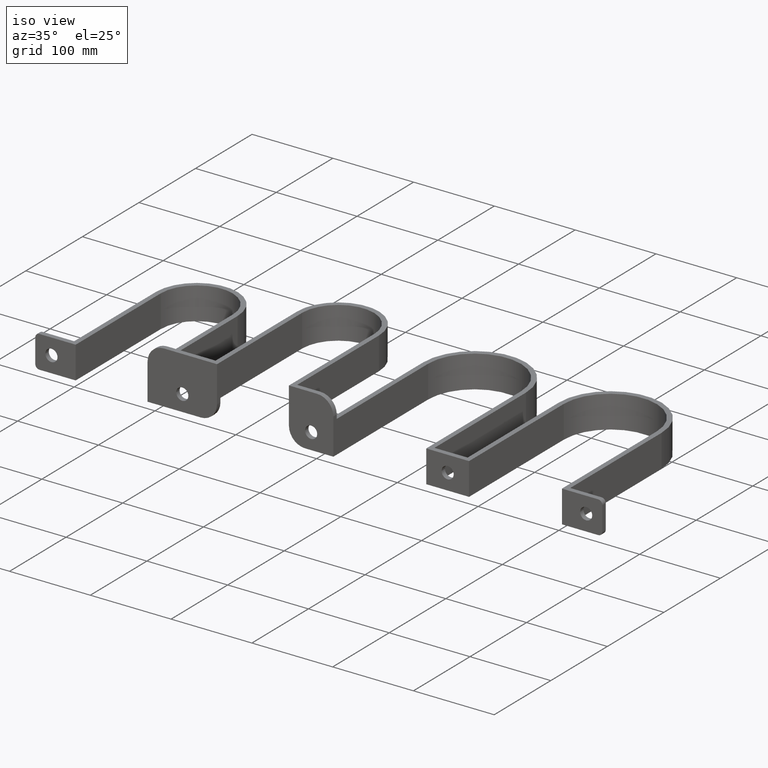
[diagram: clean part render]
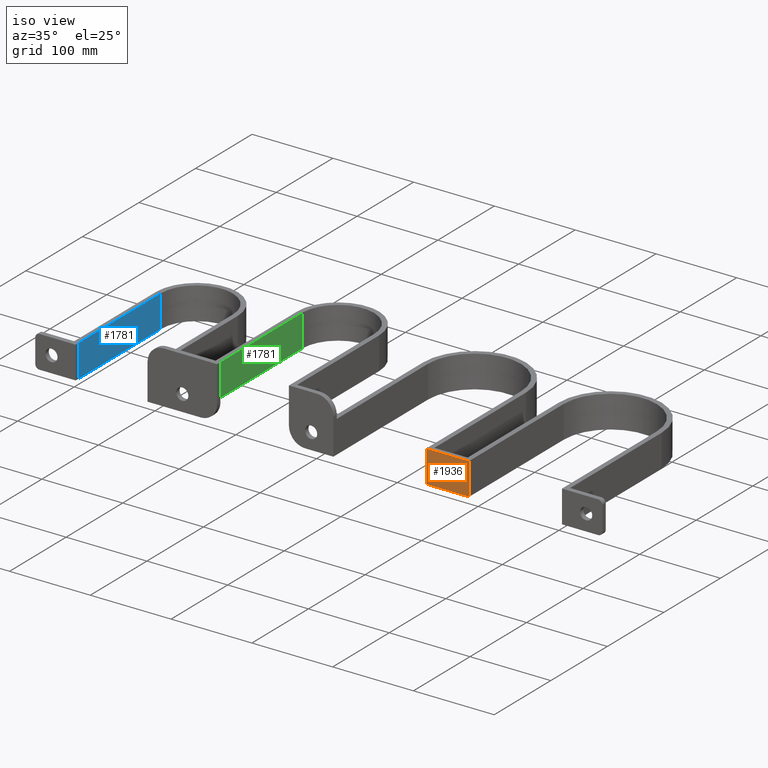
[diagram: same view with three faces highlighted in distinct colors, each labeled with its STEP entity id]
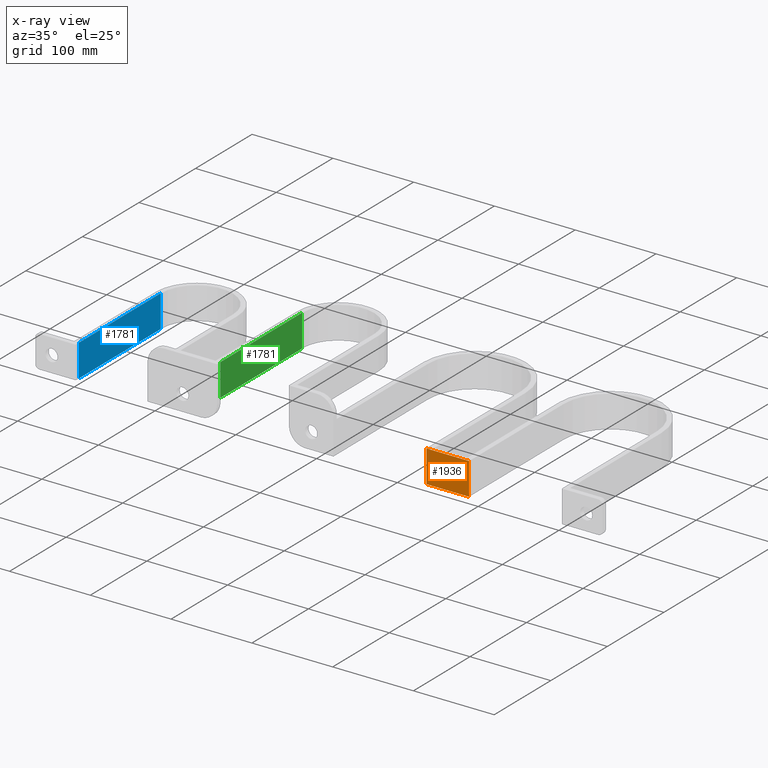
[diagram: x-ray of the same camera — body ghosted, the three highlighted faces saturated]
A machine part, iso view with three faces highlighted in distinct colors.
The next image is the same camera in x-ray (body ghosted, the three faces saturated) — at least one of them is partly hidden behind the body in this view.
Their STEP definitions:

[orange] entity #1936 — the highlighted planar face has unit normal (0, 1, 0).
#20 = AXIS2_PLACEMENT_3D ( 'NONE', #91, #2362, #2217 ) ;
#51 = ORIENTED_EDGE ( 'NONE', *, *, #1638, .F. ) ;
#64 = EDGE_CURVE ( 'NONE', #2111, #2183, #833, .T. ) ;
#91 = CARTESIAN_POINT ( 'NONE',  ( 0.000000000000000000, 0.000000000000000000, -6.000000000000000000 ) ) ;
#96 = DIRECTION ( 'NONE',  ( -3.469446951953613696E-16, 1.000000000000000000, 0.000000000000000000 ) ) ;
#156 = DIRECTION ( 'NONE',  ( -0.000000000000000000, -1.000000000000000000, -0.000000000000000000 ) ) ;
#333 = DIRECTION ( 'NONE',  ( 0.000000000000000000, 0.000000000000000000, 1.000000000000000000 ) ) ;
#343 = EDGE_LOOP ( 'NONE', ( #946, #2494, #2417, #51 ) ) ;
#453 = CARTESIAN_POINT ( 'NONE',  ( -19.00000000000001066, 19.99999999999999289, -6.000000000000000000 ) ) ;
#471 = LINE ( 'NONE', #484, #2579 ) ;
#484 = CARTESIAN_POINT ( 'NONE',  ( -53.00000000000000000, -6.368163355566236381E-15, -6.000000000000000000 ) ) ;
#529 = DIRECTION ( 'NONE',  ( 1.000000000000000000, 0.000000000000000000, 0.000000000000000000 ) ) ;
#576 = VERTEX_POINT ( 'NONE', #2570 ) ;
#607 = DIRECTION ( 'NONE',  ( 1.000000000000000000, 0.000000000000000000, 0.000000000000000000 ) ) ;
#623 = DIRECTION ( 'NONE',  ( -1.000000000000000000, -3.927675794664469870E-16, 0.000000000000000000 ) ) ;
#771 = LINE ( 'NONE', #820, #2195 ) ;
#791 = AXIS2_PLACEMENT_3D ( 'NONE', #1136, #333, #529 ) ;
#795 = VERTEX_POINT ( 'NONE', #878 ) ;
#803 = CARTESIAN_POINT ( 'NONE',  ( -26.50000000000000711, 19.99999999999999289, -6.000000000000000000 ) ) ;
#820 = CARTESIAN_POINT ( 'NONE',  ( 0.000000000000000000, 0.000000000000000000, -6.000000000000000000 ) ) ;
#833 = CIRCLE ( 'NONE', #791, 7.499999999999996447 ) ;
#858 = CARTESIAN_POINT ( 'NONE',  ( -53.00000000000000000, 39.99999999999998579, -6.000000000000000000 ) ) ;
#878 = CARTESIAN_POINT ( 'NONE',  ( -1.387778780781445676E-14, 40.00000000000000711, -6.000000000000000000 ) ) ;
#880 = LINE ( 'NONE', #1087, #2022 ) ;
#921 = EDGE_CURVE ( 'NONE', #576, #795, #880, .T. ) ;
#946 = ORIENTED_EDGE ( 'NONE', *, *, #921, .F. ) ;
#1015 = VECTOR ( 'NONE', #623, 1000.000000000000000 ) ;
#1087 = CARTESIAN_POINT ( 'NONE',  ( 0.000000000000000000, 0.000000000000000000, -6.000000000000000000 ) ) ;
#1136 = CARTESIAN_POINT ( 'NONE',  ( -26.50000000000000711, 19.99999999999999289, -6.000000000000000000 ) ) ;
#1194 = CARTESIAN_POINT ( 'NONE',  ( -34.00000000000000000, 19.99999999999999289, -6.000000000000000000 ) ) ;
#1214 = DIRECTION ( 'NONE',  ( 0.000000000000000000, 0.000000000000000000, 1.000000000000000000 ) ) ;
#1380 = PLANE ( 'NONE',  #20 ) ;
#1563 = EDGE_CURVE ( 'NONE', #2657, #576, #771, .T. ) ;
#1635 = EDGE_LOOP ( 'NONE', ( #1915, #2302 ) ) ;
#1638 = EDGE_CURVE ( 'NONE', #795, #1914, #1668, .T. ) ;
#1668 = LINE ( 'NONE', #2495, #1015 ) ;
#1687 = DIRECTION ( 'NONE',  ( 1.000000000000000000, 1.201540255767214463E-16, -0.000000000000000000 ) ) ;
#1774 = AXIS2_PLACEMENT_3D ( 'NONE', #803, #1214, #607 ) ;
#1914 = VERTEX_POINT ( 'NONE', #858 ) ;
#1915 = ORIENTED_EDGE ( 'NONE', *, *, #64, .T. ) ;
#1932 = CARTESIAN_POINT ( 'NONE',  ( -53.00000000000000000, -6.368163355566236381E-15, -6.000000000000000000 ) ) ;
#1936 = ADVANCED_FACE ( 'NONE', ( #2482, #2278 ), #1380, .F. ) ;
#1953 = EDGE_CURVE ( 'NONE', #1914, #2657, #471, .T. ) ;
#2022 = VECTOR ( 'NONE', #96, 1000.000000000000000 ) ;
#2065 = CIRCLE ( 'NONE', #1774, 7.499999999999996447 ) ;
#2111 = VERTEX_POINT ( 'NONE', #453 ) ;
#2183 = VERTEX_POINT ( 'NONE', #1194 ) ;
#2195 = VECTOR ( 'NONE', #1687, 1000.000000000000000 ) ;
#2217 = DIRECTION ( 'NONE',  ( 1.000000000000000000, 0.000000000000000000, -0.000000000000000000 ) ) ;
#2278 = FACE_OUTER_BOUND ( 'NONE', #343, .T. ) ;
#2302 = ORIENTED_EDGE ( 'NONE', *, *, #2327, .T. ) ;
#2327 = EDGE_CURVE ( 'NONE', #2183, #2111, #2065, .T. ) ;
#2362 = DIRECTION ( 'NONE',  ( 0.000000000000000000, 0.000000000000000000, 1.000000000000000000 ) ) ;
#2417 = ORIENTED_EDGE ( 'NONE', *, *, #1953, .F. ) ;
#2482 = FACE_BOUND ( 'NONE', #1635, .T. ) ;
#2494 = ORIENTED_EDGE ( 'NONE', *, *, #1563, .F. ) ;
#2495 = CARTESIAN_POINT ( 'NONE',  ( -1.387778780781445676E-14, 40.00000000000000711, -6.000000000000000000 ) ) ;
#2570 = CARTESIAN_POINT ( 'NONE',  ( 0.000000000000000000, 0.000000000000000000, -6.000000000000000000 ) ) ;
#2579 = VECTOR ( 'NONE', #156, 1000.000000000000000 ) ;
#2657 = VERTEX_POINT ( 'NONE', #1932 ) ;

[blue] entity #1781 — the highlighted planar face has unit normal (-1, 0, 0).
#34 = EDGE_CURVE ( 'NONE', #2665, #2172, #87, .T. ) ;
#43 = CARTESIAN_POINT ( 'NONE',  ( -44.50000000000000000, 5.999999999999985789, 20.00000000000000000 ) ) ;
#60 = CARTESIAN_POINT ( 'NONE',  ( -44.50000000000000000, 5.999999999999985789, 20.00000000000000000 ) ) ;
#87 = LINE ( 'NONE', #248, #1662 ) ;
#116 = VECTOR ( 'NONE', #1916, 1000.000000000000000 ) ;
#248 = CARTESIAN_POINT ( 'NONE',  ( -44.50000000000000000, 150.5000000000000284, 20.00000000000000000 ) ) ;
#389 = EDGE_CURVE ( 'NONE', #760, #2665, #2047, .T. ) ;
#470 = ORIENTED_EDGE ( 'NONE', *, *, #389, .F. ) ;
#497 = CARTESIAN_POINT ( 'NONE',  ( -44.50000000000000000, 5.999999999999985789, 20.00000000000000000 ) ) ;
#593 = DIRECTION ( 'NONE',  ( 0.000000000000000000, 1.000000000000000000, 0.000000000000000000 ) ) ;
#677 = VECTOR ( 'NONE', #1253, 1000.000000000000000 ) ;
#760 = VERTEX_POINT ( 'NONE', #60 ) ;
#900 = FACE_OUTER_BOUND ( 'NONE', #2463, .T. ) ;
#945 = CARTESIAN_POINT ( 'NONE',  ( -44.50000000000000000, 150.5000000000000284, 20.00000000000000000 ) ) ;
#1010 = ORIENTED_EDGE ( 'NONE', *, *, #2598, .T. ) ;
#1066 = CARTESIAN_POINT ( 'NONE',  ( -44.50000000000000000, 5.999999999999985789, -20.00000000000000000 ) ) ;
#1174 = VECTOR ( 'NONE', #593, 1000.000000000000000 ) ;
#1242 = LINE ( 'NONE', #1066, #677 ) ;
#1253 = DIRECTION ( 'NONE',  ( 0.000000000000000000, 1.000000000000000000, 0.000000000000000000 ) ) ;
#1346 = DIRECTION ( 'NONE',  ( -1.000000000000000000, 0.000000000000000000, 0.000000000000000000 ) ) ;
#1491 = ORIENTED_EDGE ( 'NONE', *, *, #2116, .T. ) ;
#1525 = DIRECTION ( 'NONE',  ( -0.000000000000000000, -0.000000000000000000, -1.000000000000000000 ) ) ;
#1564 = CARTESIAN_POINT ( 'NONE',  ( -44.50000000000000000, 5.999999999999985789, -20.00000000000000000 ) ) ;
#1662 = VECTOR ( 'NONE', #1525, 1000.000000000000000 ) ;
#1781 = ADVANCED_FACE ( 'NONE', ( #900 ), #2561, .F. ) ;
#1901 = AXIS2_PLACEMENT_3D ( 'NONE', #497, #1346, #2173 ) ;
#1916 = DIRECTION ( 'NONE',  ( -0.000000000000000000, -0.000000000000000000, -1.000000000000000000 ) ) ;
#2047 = LINE ( 'NONE', #2439, #1174 ) ;
#2116 = EDGE_CURVE ( 'NONE', #2678, #2172, #1242, .T. ) ;
#2172 = VERTEX_POINT ( 'NONE', #2641 ) ;
#2173 = DIRECTION ( 'NONE',  ( 0.000000000000000000, 0.000000000000000000, 1.000000000000000000 ) ) ;
#2439 = CARTESIAN_POINT ( 'NONE',  ( -44.50000000000000000, 5.999999999999985789, 20.00000000000000000 ) ) ;
#2463 = EDGE_LOOP ( 'NONE', ( #1491, #2574, #470, #1010 ) ) ;
#2531 = LINE ( 'NONE', #43, #116 ) ;
#2561 = PLANE ( 'NONE',  #1901 ) ;
#2574 = ORIENTED_EDGE ( 'NONE', *, *, #34, .F. ) ;
#2598 = EDGE_CURVE ( 'NONE', #760, #2678, #2531, .T. ) ;
#2641 = CARTESIAN_POINT ( 'NONE',  ( -44.50000000000000000, 150.5000000000000284, -20.00000000000000000 ) ) ;
#2665 = VERTEX_POINT ( 'NONE', #945 ) ;
#2678 = VERTEX_POINT ( 'NONE', #1564 ) ;

[green] entity #1781 — the highlighted planar face has unit normal (-1, 0, 0).
#34 = EDGE_CURVE ( 'NONE', #2665, #2172, #87, .T. ) ;
#43 = CARTESIAN_POINT ( 'NONE',  ( -44.50000000000000000, 5.999999999999985789, 20.00000000000000000 ) ) ;
#60 = CARTESIAN_POINT ( 'NONE',  ( -44.50000000000000000, 5.999999999999985789, 20.00000000000000000 ) ) ;
#87 = LINE ( 'NONE', #248, #1662 ) ;
#116 = VECTOR ( 'NONE', #1916, 1000.000000000000000 ) ;
#248 = CARTESIAN_POINT ( 'NONE',  ( -44.50000000000000000, 150.5000000000000284, 20.00000000000000000 ) ) ;
#389 = EDGE_CURVE ( 'NONE', #760, #2665, #2047, .T. ) ;
#470 = ORIENTED_EDGE ( 'NONE', *, *, #389, .F. ) ;
#497 = CARTESIAN_POINT ( 'NONE',  ( -44.50000000000000000, 5.999999999999985789, 20.00000000000000000 ) ) ;
#593 = DIRECTION ( 'NONE',  ( 0.000000000000000000, 1.000000000000000000, 0.000000000000000000 ) ) ;
#677 = VECTOR ( 'NONE', #1253, 1000.000000000000000 ) ;
#760 = VERTEX_POINT ( 'NONE', #60 ) ;
#900 = FACE_OUTER_BOUND ( 'NONE', #2463, .T. ) ;
#945 = CARTESIAN_POINT ( 'NONE',  ( -44.50000000000000000, 150.5000000000000284, 20.00000000000000000 ) ) ;
#1010 = ORIENTED_EDGE ( 'NONE', *, *, #2598, .T. ) ;
#1066 = CARTESIAN_POINT ( 'NONE',  ( -44.50000000000000000, 5.999999999999985789, -20.00000000000000000 ) ) ;
#1174 = VECTOR ( 'NONE', #593, 1000.000000000000000 ) ;
#1242 = LINE ( 'NONE', #1066, #677 ) ;
#1253 = DIRECTION ( 'NONE',  ( 0.000000000000000000, 1.000000000000000000, 0.000000000000000000 ) ) ;
#1346 = DIRECTION ( 'NONE',  ( -1.000000000000000000, 0.000000000000000000, 0.000000000000000000 ) ) ;
#1491 = ORIENTED_EDGE ( 'NONE', *, *, #2116, .T. ) ;
#1525 = DIRECTION ( 'NONE',  ( -0.000000000000000000, -0.000000000000000000, -1.000000000000000000 ) ) ;
#1564 = CARTESIAN_POINT ( 'NONE',  ( -44.50000000000000000, 5.999999999999985789, -20.00000000000000000 ) ) ;
#1662 = VECTOR ( 'NONE', #1525, 1000.000000000000000 ) ;
#1781 = ADVANCED_FACE ( 'NONE', ( #900 ), #2561, .F. ) ;
#1901 = AXIS2_PLACEMENT_3D ( 'NONE', #497, #1346, #2173 ) ;
#1916 = DIRECTION ( 'NONE',  ( -0.000000000000000000, -0.000000000000000000, -1.000000000000000000 ) ) ;
#2047 = LINE ( 'NONE', #2439, #1174 ) ;
#2116 = EDGE_CURVE ( 'NONE', #2678, #2172, #1242, .T. ) ;
#2172 = VERTEX_POINT ( 'NONE', #2641 ) ;
#2173 = DIRECTION ( 'NONE',  ( 0.000000000000000000, 0.000000000000000000, 1.000000000000000000 ) ) ;
#2439 = CARTESIAN_POINT ( 'NONE',  ( -44.50000000000000000, 5.999999999999985789, 20.00000000000000000 ) ) ;
#2463 = EDGE_LOOP ( 'NONE', ( #1491, #2574, #470, #1010 ) ) ;
#2531 = LINE ( 'NONE', #43, #116 ) ;
#2561 = PLANE ( 'NONE',  #1901 ) ;
#2574 = ORIENTED_EDGE ( 'NONE', *, *, #34, .F. ) ;
#2598 = EDGE_CURVE ( 'NONE', #760, #2678, #2531, .T. ) ;
#2641 = CARTESIAN_POINT ( 'NONE',  ( -44.50000000000000000, 150.5000000000000284, -20.00000000000000000 ) ) ;
#2665 = VERTEX_POINT ( 'NONE', #945 ) ;
#2678 = VERTEX_POINT ( 'NONE', #1564 ) ;